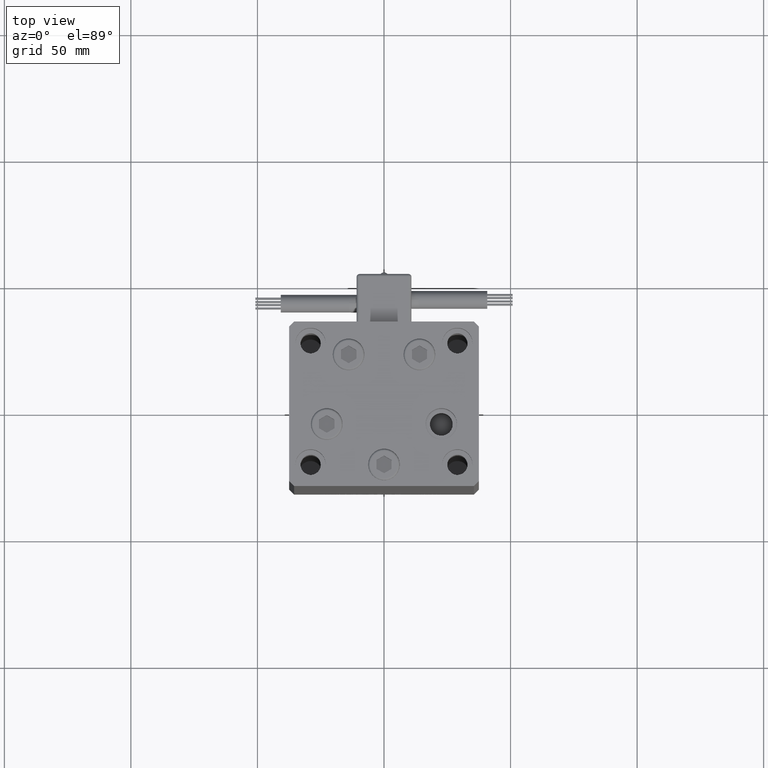
[diagram: clean part render]
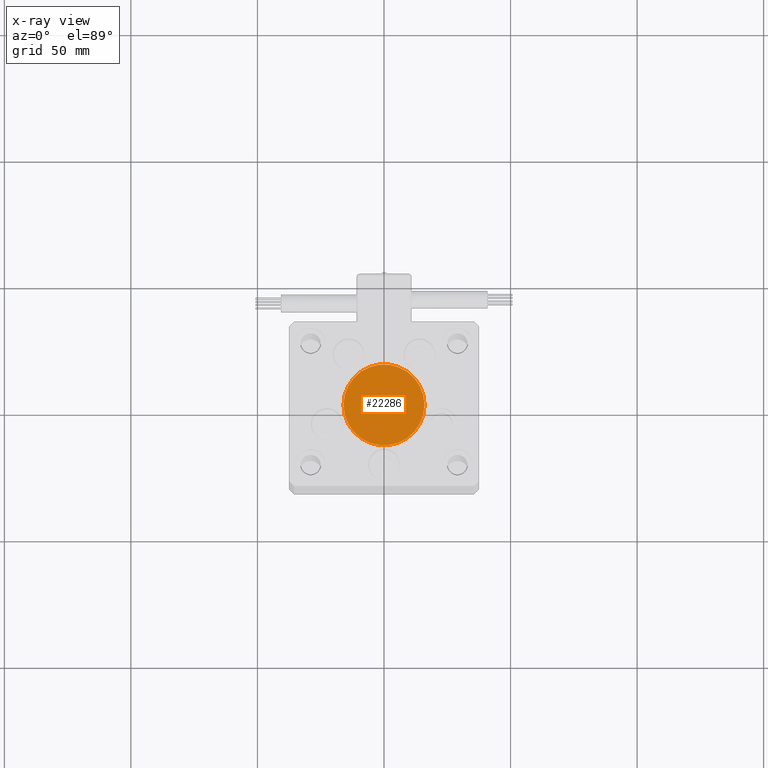
[diagram: x-ray — body ghosted, one internal face saturated and labeled with its STEP entity id]
A machine part, top view, then the same camera in x-ray: the body is ghosted and one INTERNAL B-rep face — a face not visible from any outside direction — is saturated and labeled: STEP entity #22286.
In plain terms, the highlighted planar face has unit normal (0, 0, -1).
Its self-contained STEP definition (entity closure, byte-faithful):
#2166 = AXIS2_PLACEMENT_3D ( 'NONE', #19802, #27362, #3864 ) ;
#3864 = DIRECTION ( 'NONE',  ( -1.000000000000000000, 0.000000000000000000, 0.000000000000000000 ) ) ;
#5542 = CARTESIAN_POINT ( 'NONE',  ( 0.000000000000000000, 0.000000000000000000, -27.99999999999999645 ) ) ;
#13377 = FACE_OUTER_BOUND ( 'NONE', #19582, .T. ) ;
#17966 = DIRECTION ( 'NONE',  ( 0.000000000000000000, 0.000000000000000000, -1.000000000000000000 ) ) ;
#18209 = AXIS2_PLACEMENT_3D ( 'NONE', #35461, #20037, #23024 ) ;
#18726 = EDGE_CURVE ( 'NONE', #51496, #32200, #34616, .T. ) ;
#19582 = EDGE_LOOP ( 'NONE', ( #30040, #27230 ) ) ;
#19802 = CARTESIAN_POINT ( 'NONE',  ( 0.000000000000000000, 0.000000000000000000, -27.99999999999999645 ) ) ;
#20037 = DIRECTION ( 'NONE',  ( 0.000000000000000000, 0.000000000000000000, -1.000000000000000000 ) ) ;
#21754 = DIRECTION ( 'NONE',  ( -1.000000000000000000, 0.000000000000000000, -0.000000000000000000 ) ) ;
#22286 = ADVANCED_FACE ( 'NONE', ( #13377 ), #39034, .T. ) ;
#23024 = DIRECTION ( 'NONE',  ( -1.000000000000000000, 0.000000000000000000, 0.000000000000000000 ) ) ;
#27230 = ORIENTED_EDGE ( 'NONE', *, *, #18726, .T. ) ;
#27362 = DIRECTION ( 'NONE',  ( 0.000000000000000000, 0.000000000000000000, -1.000000000000000000 ) ) ;
#28915 = CIRCLE ( 'NONE', #2166, 16.00000000000000000 ) ;
#30040 = ORIENTED_EDGE ( 'NONE', *, *, #30755, .T. ) ;
#30755 = EDGE_CURVE ( 'NONE', #32200, #51496, #28915, .T. ) ;
#32200 = VERTEX_POINT ( 'NONE', #44088 ) ;
#34616 = CIRCLE ( 'NONE', #18209, 16.00000000000000000 ) ;
#35461 = CARTESIAN_POINT ( 'NONE',  ( 0.000000000000000000, 0.000000000000000000, -27.99999999999999645 ) ) ;
#37314 = AXIS2_PLACEMENT_3D ( 'NONE', #5542, #17966, #21754 ) ;
#39034 = PLANE ( 'NONE',  #37314 ) ;
#44088 = CARTESIAN_POINT ( 'NONE',  ( 16.00000000000000000, 0.000000000000000000, -27.99999999999999645 ) ) ;
#51496 = VERTEX_POINT ( 'NONE', #52002 ) ;
#52002 = CARTESIAN_POINT ( 'NONE',  ( -16.00000000000000000, 1.959434878635764737E-15, -27.99999999999999645 ) ) ;